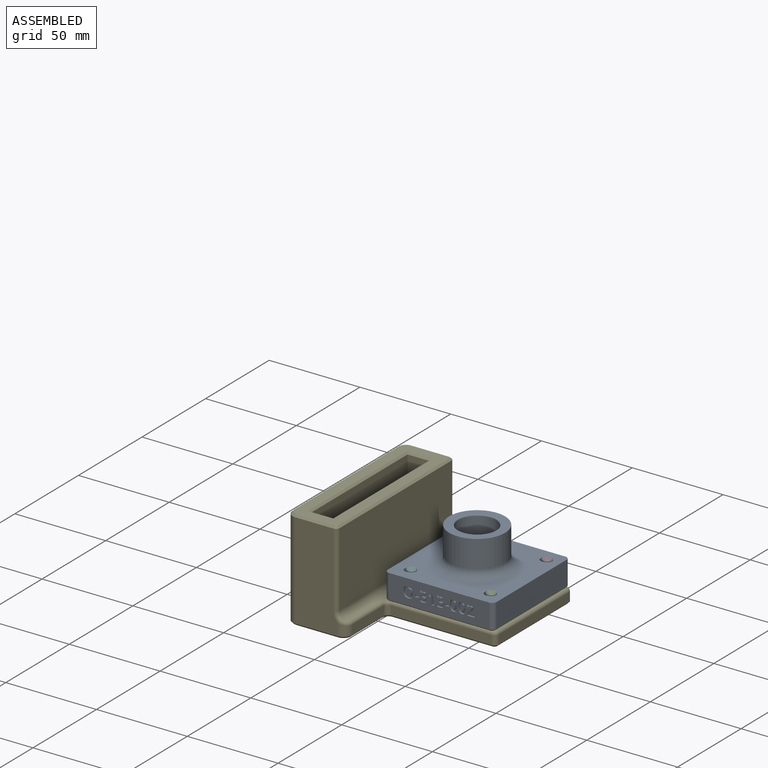
[diagram: assembled view]
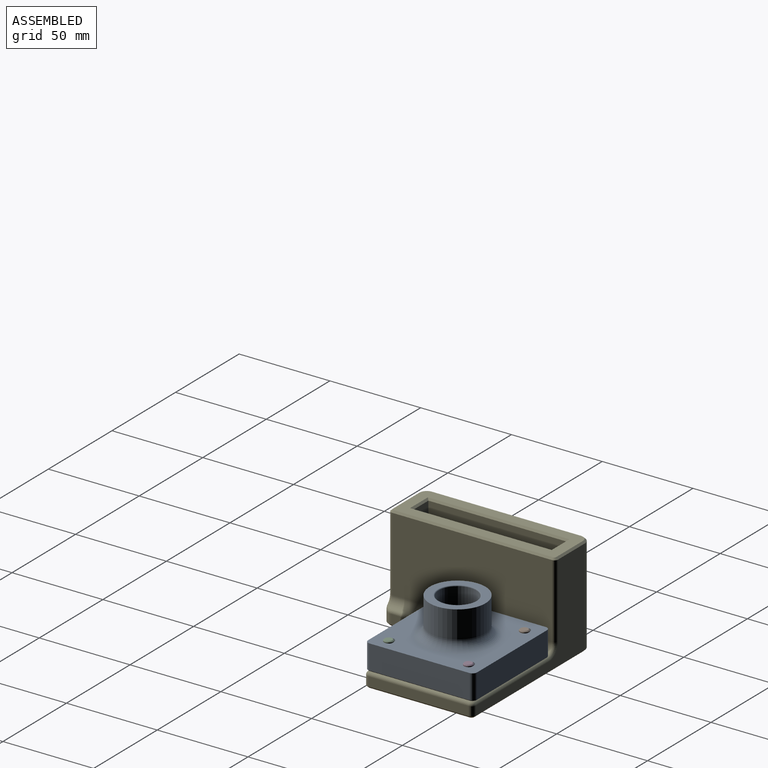
[diagram: assembled view, second angle]
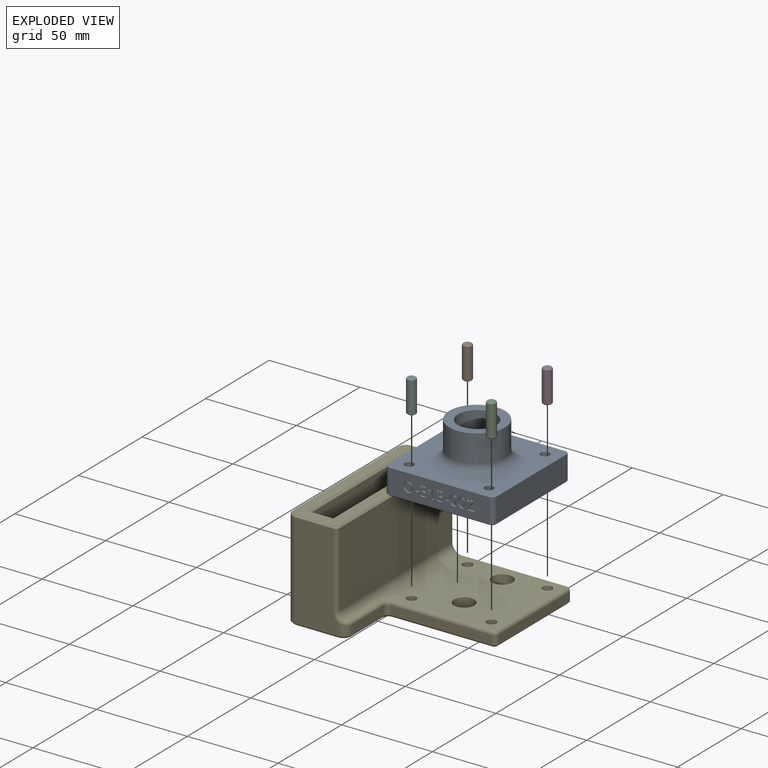
[diagram: exploded view]
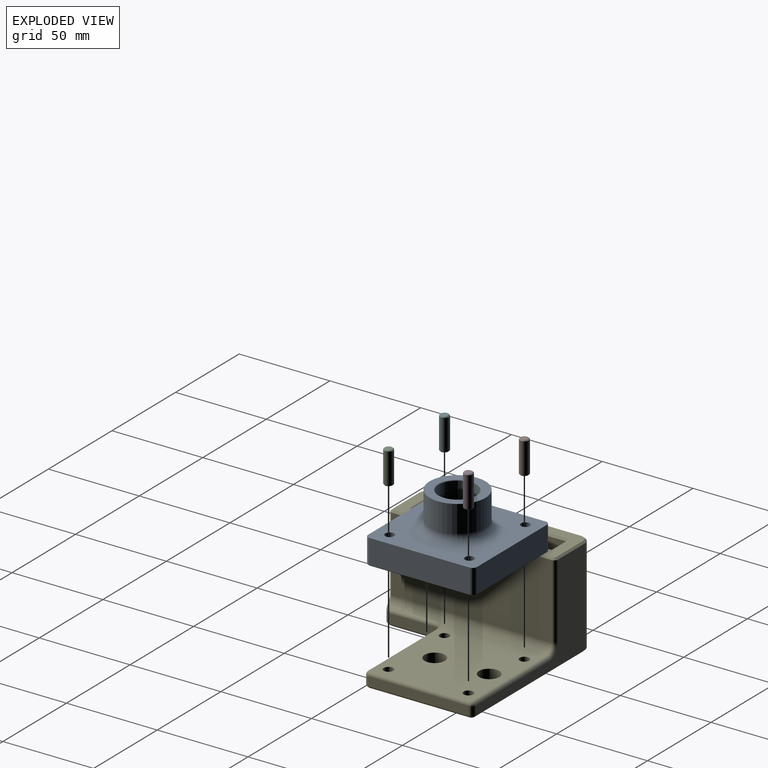
[diagram: exploded view, second angle]
ASSEMBLY  parts=6 mates=5
PART A: 182 faces, bbox 60x60x34 mm
  f0: plane 55x13.5mm, normal (0,-1,0), area 622.7mm2, adj f4,f16,f17,f20,f28,f29,f30,f31
  f1: plane 55x13.5mm, normal (-1,0,0), area 742.5mm2, adj f4,f16,f19,f23
  f2: plane 55x13.5mm, normal (1,0,0), area 742.5mm2, adj f4,f17,f18,f24
  f3: plane 55x13.5mm, normal (0,1,0), area 742.5mm2, adj f4,f18,f19,f27
  f4: plane 60x60mm, normal (0,0,1), area 2208.7mm2, adj f0,f1,f2,f3,f10,f11,f12,f13
  f5: plane 59x59mm, normal (0,0,-1), area 3399mm2, adj f10,f11,f12,f13,f20,f21,f22,f23
  f6: cylinder r=10.4mm len=30.5mm, axis (0,0,-1), area 1993mm2, adj f9,f15
  f7: cylinder r=15.4mm len=30.8mm, axis (0,0,-1), area 1451.4mm2, adj f8,f14
  f8: plane 30.8x30.8mm, normal (0,0,1), area 371.8mm2, adj f7,f15
  f9: plane 20.8x20.8mm, normal (0,0,1), area 339.8mm2, adj f6
  f10: cylinder r=2.5mm len=14mm, axis (0,0,1), area 219.9mm2, adj f4,f5
  f11: cylinder r=2.5mm len=14mm, axis (0,0,1), area 219.9mm2, adj f4,f5
  f12: cylinder r=2.5mm len=14mm, axis (0,0,1), area 219.9mm2, adj f4,f5
  f13: cylinder r=2.5mm len=14mm, axis (0,0,1), area 219.9mm2, adj f4,f5
  f14: torus R=20.4mm, axis (0,0,1), area 849.6mm2, adj f4,f7
  f15: torus R=10.9mm, axis (0,0,1), area 52.2mm2, adj f6,f8
  f16: cylinder r=2.5mm len=13.5mm, axis (0,0,-1), area 53mm2, adj f0,f1,f4,f21
  f17: cylinder r=2.5mm len=13.5mm, axis (0,0,1), area 53mm2, adj f0,f2,f4,f22
  f18: cylinder r=2.5mm len=13.5mm, axis (0,0,-1), area 53mm2, adj f2,f3,f4,f26
  f19: cylinder r=2.5mm len=13.5mm, axis (0,0,1), area 53mm2, adj f1,f3,f4,f25
  f20: plane 55x0.5mm, normal (0,-0.71,-0.71), area 38.9mm2, adj f0,f5,f21,f22
  f21: cone r=2mm half-angle=45deg, axis (0,0,1), area 2.5mm2, adj f5,f16,f20,f23
  f22: cone r=2mm half-angle=45deg, axis (0,0,1), area 2.5mm2, adj f5,f17,f20,f24
  f23: plane 55x0.5mm, normal (-0.71,0,-0.71), area 38.9mm2, adj f1,f5,f21,f25
  f24: plane 55x0.5mm, normal (0.71,0,-0.71), area 38.9mm2, adj f2,f5,f22,f26
  f25: cone r=2mm half-angle=45deg, axis (0,0,1), area 2.5mm2, adj f5,f19,f23,f27
  f26: cone r=2mm half-angle=45deg, axis (0,0,1), area 2.5mm2, adj f5,f18,f24,f27
  f27: plane 55x0.5mm, normal (0,0.71,-0.71), area 38.9mm2, adj f3,f5,f25,f26
  f28: extruded ~1.02x1mm, area 1.2mm2, adj f0,f29,f54,f55
  f29: extruded ~1.43x1mm, area 1.5mm2, adj f0,f28,f30,f55
  f30: extruded ~1.9x1mm, area 2mm2, adj f0,f29,f31,f55
  f31: plane 1x0.85mm, normal (0.83,0,0.56), area 1mm2, adj f0,f30,f32,f55
  f32: extruded ~1x0.66mm, area 0.7mm2, adj f0,f31,f33,f55
  f33: extruded ~1x0.58mm, area 0.6mm2, adj f0,f32,f34,f55
  f34: extruded ~1x0.83mm, area 1.2mm2, adj f0,f33,f35,f55
  f35: extruded ~1x0.61mm, area 0.7mm2, adj f0,f34,f36,f55
  f36: extruded ~1x0.99mm, area 1mm2, adj f0,f35,f37,f55
  f37: plane 1x0.45mm, normal (0,0,-1), area 0.5mm2, adj f0,f36,f38,f55
  f38: plane 1x0.95mm, normal (1,0,0), area 0.9mm2, adj f0,f37,f39,f55
  f39: plane 1x0.44mm, normal (0,0,1), area 0.4mm2, adj f0,f38,f40,f55
  f40: extruded ~1.07x1mm, area 1.1mm2, adj f0,f39,f41,f55
  f41: extruded ~1x0.58mm, area 0.7mm2, adj f0,f40,f42,f55
  f42: extruded ~1x0.67mm, area 0.8mm2, adj f0,f41,f43,f55
  f43: extruded ~1x0.9mm, area 0.9mm2, adj f0,f42,f44,f55
  f44: extruded ~1x0.81mm, area 0.8mm2, adj f0,f43,f45,f55
  f45: extruded ~1x0.75mm, area 0.8mm2, adj f0,f44,f46,f55
  f46: plane 1.05x1mm, normal (1,0,0), area 1mm2, adj f0,f45,f47,f55
  f47: extruded ~1.68x1mm, area 1.7mm2, adj f0,f46,f48,f55
  f48: extruded ~1.74x1mm, area 1.8mm2, adj f0,f47,f49,f55
  f49: extruded ~1.31x1mm, area 1.5mm2, adj f0,f48,f50,f55
  f50: extruded ~1x0.92mm, area 1mm2, adj f0,f49,f51,f55
  f51: extruded ~1.07x1mm, area 1.2mm2, adj f0,f50,f52,f55
  f52: plane 1x0.02mm, normal (-1,0,0), area 0mm2, adj f0,f51,f53,f55
  f53: extruded ~1x0.93mm, area 1.1mm2, adj f0,f52,f54,f55
  f54: extruded ~1x0.93mm, area 1mm2, adj f0,f28,f53,f55
  f55: plane 5.99x4.04mm, normal (0,-1,0), area 12.9mm2, adj f28,f29,f30,f31,f32,f33,f34,f35
  f56: extruded ~2.23x1mm, area 2.4mm2, adj f0,f57,f69,f70
  f57: extruded ~2.06x1mm, area 2.3mm2, adj f0,f56,f58,f70
  f58: extruded ~2.06x1mm, area 2.3mm2, adj f0,f57,f59,f70
  f59: extruded ~2.22x1mm, area 2.4mm2, adj f0,f58,f60,f70
  f60: extruded ~2.23x1mm, area 2.4mm2, adj f0,f59,f61,f70
  f61: extruded ~2.06x1mm, area 2.3mm2, adj f0,f60,f62,f70
  f62: extruded ~2.06x1mm, area 2.3mm2, adj f0,f61,f69,f70
  f63: extruded ~1.47x1mm, area 1.5mm2, adj f64,f68,f70,f71
  f64: extruded ~1.11x1mm, area 1.3mm2, adj f63,f65,f70,f71
  f65: extruded ~1.97x1.47mm, area 2.8mm2, adj f64,f66,f70,f71
  f66: extruded ~1.97x1.48mm, area 2.8mm2, adj f65,f67,f70,f71
  f67: extruded ~1.11x1mm, area 1.3mm2, adj f66,f68,f70,f71
  f68: extruded ~1.47x1mm, area 1.5mm2, adj f63,f67,f70,f71
  f69: extruded ~2.23x1mm, area 2.4mm2, adj f0,f56,f62,f70
  f70: plane 6x5.55mm, normal (0,-1,0), area 17.8mm2, adj f56,f57,f58,f59,f60,f61,f62,f63
  f71: plane 3.94x2.96mm, normal (0,-1,0), area 9.7mm2, adj f63,f64,f65,f66,f67,f68
  f72: extruded ~2.24x1mm, area 2.3mm2, adj f0,f73,f87,f88
  f73: extruded ~1.53x1mm, area 1.8mm2, adj f0,f72,f74,f88
  f74: extruded ~1.54x1mm, area 1.8mm2, adj f0,f73,f75,f88
  f75: extruded ~2.28x1mm, area 2.4mm2, adj f0,f74,f76,f88
  f76: extruded ~2.24x1mm, area 2.3mm2, adj f0,f75,f77,f88
  f77: extruded ~1.52x1mm, area 1.8mm2, adj f0,f76,f78,f88
  f78: extruded ~1.54x1mm, area 1.8mm2, adj f0,f77,f87,f88
  f79: extruded ~1.54x1mm, area 1.6mm2, adj f80,f86,f88,f89
  f80: extruded ~1x0.62mm, area 0.8mm2, adj f79,f81,f88,f89
  f81: extruded ~1x0.62mm, area 0.8mm2, adj f80,f82,f88,f89
  f82: extruded ~1.54x1mm, area 1.6mm2, adj f81,f83,f88,f89
  f83: extruded ~1.53x1mm, area 1.6mm2, adj f82,f84,f88,f89
  f84: extruded ~1x0.62mm, area 0.8mm2, adj f83,f85,f88,f89
  f85: extruded ~1x0.62mm, area 0.8mm2, adj f84,f86,f88,f89
  f86: extruded ~1.54x1mm, area 1.6mm2, adj f79,f85,f88,f89
  f87: extruded ~2.26x1mm, area 2.3mm2, adj f0,f72,f78,f88
  f88: plane 6x4.08mm, normal (0,-1,0), area 14.9mm2, adj f72,f73,f74,f75,f76,f77,f78,f79
  f89: plane 4.01x1.62mm, normal (0,-1,0), area 5.5mm2, adj f79,f80,f81,f82,f83,f84,f85,f86
  f90: extruded ~2.24x1mm, area 2.3mm2, adj f0,f91,f105,f106
  f91: extruded ~1.53x1mm, area 1.8mm2, adj f0,f90,f92,f106
  f92: extruded ~1.54x1mm, area 1.8mm2, adj f0,f91,f93,f106
  f93: extruded ~2.28x1mm, area 2.4mm2, adj f0,f92,f94,f106
  f94: extruded ~2.24x1mm, area 2.3mm2, adj f0,f93,f95,f106
  f95: extruded ~1.52x1mm, area 1.8mm2, adj f0,f94,f96,f106
  f96: extruded ~1.54x1mm, area 1.8mm2, adj f0,f95,f105,f106
  f97: extruded ~1.54x1mm, area 1.6mm2, adj f98,f104,f106,f107
  f98: extruded ~1x0.62mm, area 0.8mm2, adj f97,f99,f106,f107
  f99: extruded ~1x0.62mm, area 0.8mm2, adj f98,f100,f106,f107
  f100: extruded ~1.54x1mm, area 1.6mm2, adj f99,f101,f106,f107
  f101: extruded ~1.53x1mm, area 1.6mm2, adj f100,f102,f106,f107
  f102: extruded ~1x0.62mm, area 0.8mm2, adj f101,f103,f106,f107
  f103: extruded ~1x0.62mm, area 0.8mm2, adj f102,f104,f106,f107
  f104: extruded ~1.54x1mm, area 1.6mm2, adj f97,f103,f106,f107
  f105: extruded ~2.26x1mm, area 2.3mm2, adj f0,f90,f96,f106
  f106: plane 6x4.08mm, normal (0,-1,0), area 14.9mm2, adj f90,f91,f92,f93,f94,f95,f96,f97
  f107: plane 4.01x1.62mm, normal (0,-1,0), area 5.5mm2, adj f97,f98,f99,f100,f101,f102,f103,f104
  f108: plane 2.14x1mm, normal (0,0,1), area 2.1mm2, adj f0,f109,f111,f112
  f109: plane 1x1mm, normal (-1,0,0), area 1mm2, adj f0,f108,f110,f112
  f110: plane 2.14x1mm, normal (0,0,-1), area 2.1mm2, adj f0,f109,f111,f112
  f111: plane 1x1mm, normal (1,0,0), area 1mm2, adj f0,f108,f110,f112
  f112: plane 2.14x1mm, normal (0,-1,0), area 2.1mm2, adj f108,f109,f110,f111
  f113: plane 1.04x1mm, normal (-1,0,0), area 1mm2, adj f0,f114,f136,f137
  f114: plane 2.54x1mm, normal (0,0,-1), area 2.5mm2, adj f0,f113,f115,f137
  f115: plane 1x0.06mm, normal (-1,0,0), area 0.1mm2, adj f0,f114,f116,f137
  f116: plane 1x0.75mm, normal (-0.69,0,0.73), area 1mm2, adj f0,f115,f117,f137
  f117: extruded ~1.06x1.05mm, area 1.5mm2, adj f0,f116,f118,f137
  f118: extruded ~1x0.72mm, area 0.8mm2, adj f0,f117,f119,f137
  f119: extruded ~1x0.76mm, area 0.8mm2, adj f0,f118,f120,f137
  f120: extruded ~1x0.82mm, area 0.9mm2, adj f0,f119,f121,f137
  f121: extruded ~1x0.65mm, area 0.9mm2, adj f0,f120,f122,f137
  f122: extruded ~1x0.97mm, area 1mm2, adj f0,f121,f123,f137
  f123: extruded ~1x0.75mm, area 0.8mm2, adj f0,f122,f124,f137
  f124: extruded ~1x0.62mm, area 0.7mm2, adj f0,f123,f125,f137
  f125: extruded ~1x0.71mm, area 0.9mm2, adj f0,f124,f126,f137
  f126: plane 1x0.79mm, normal (0.76,0,0.65), area 1mm2, adj f0,f125,f127,f137
  f127: extruded ~1x0.67mm, area 0.8mm2, adj f0,f126,f128,f137
  f128: extruded ~1x0.66mm, area 0.7mm2, adj f0,f127,f129,f137
  f129: extruded ~1x0.52mm, area 0.6mm2, adj f0,f128,f130,f137
  f130: extruded ~1x0.52mm, area 0.6mm2, adj f0,f129,f131,f137
  f131: extruded ~1x0.45mm, area 0.5mm2, adj f0,f130,f132,f137
  f132: extruded ~1x0.48mm, area 0.6mm2, adj f0,f131,f133,f137
  f133: extruded ~1x0.92mm, area 1.3mm2, adj f0,f132,f134,f137
  f134: plane 1.48x1.46mm, normal (0.71,0,-0.7), area 2.1mm2, adj f0,f133,f135,f137
  f135: plane 1x0.86mm, normal (1,0,0), area 0.9mm2, adj f0,f134,f136,f137
  f136: plane 4.08x1mm, normal (0,0,1), area 4.1mm2, adj f0,f113,f135,f137
  f137: plane 5.91x4.09mm, normal (0,-1,0), area 12.7mm2, adj f113,f114,f115,f116,f117,f118,f119,f120
  f138: plane 2.14x1mm, normal (0,0,1), area 2.1mm2, adj f0,f139,f141,f142
  f139: plane 1x1mm, normal (-1,0,0), area 1mm2, adj f0,f138,f140,f142
  f140: plane 2.14x1mm, normal (0,0,-1), area 2.1mm2, adj f0,f139,f141,f142
  f141: plane 1x1mm, normal (1,0,0), area 1mm2, adj f0,f138,f140,f142
  f142: plane 2.14x1mm, normal (0,-1,0), area 2.1mm2, adj f138,f139,f140,f141
  f143: extruded ~1.02x1mm, area 1.2mm2, adj f0,f144,f169,f170
  f144: extruded ~1.43x1mm, area 1.5mm2, adj f0,f143,f145,f170
  f145: extruded ~1.9x1mm, area 2mm2, adj f0,f144,f146,f170
  f146: plane 1x0.85mm, normal (0.83,0,0.56), area 1mm2, adj f0,f145,f147,f170
  f147: extruded ~1x0.66mm, area 0.7mm2, adj f0,f146,f148,f170
  f148: extruded ~1x0.58mm, area 0.6mm2, adj f0,f147,f149,f170
  f149: extruded ~1x0.83mm, area 1.2mm2, adj f0,f148,f150,f170
  f150: extruded ~1x0.61mm, area 0.7mm2, adj f0,f149,f151,f170
  f151: extruded ~1x0.99mm, area 1mm2, adj f0,f150,f152,f170
  f152: plane 1x0.45mm, normal (0,0,-1), area 0.5mm2, adj f0,f151,f153,f170
  f153: plane 1x0.95mm, normal (1,0,0), area 0.9mm2, adj f0,f152,f154,f170
  f154: plane 1x0.44mm, normal (0,0,1), area 0.4mm2, adj f0,f153,f155,f170
  f155: extruded ~1.07x1mm, area 1.1mm2, adj f0,f154,f156,f170
  f156: extruded ~1x0.58mm, area 0.7mm2, adj f0,f155,f157,f170
  f157: extruded ~1x0.67mm, area 0.8mm2, adj f0,f156,f158,f170
  f158: extruded ~1x0.9mm, area 0.9mm2, adj f0,f157,f159,f170
  f159: extruded ~1x0.81mm, area 0.8mm2, adj f0,f158,f160,f170
  f160: extruded ~1x0.75mm, area 0.8mm2, adj f0,f159,f161,f170
  f161: plane 1.05x1mm, normal (1,0,0), area 1mm2, adj f0,f160,f162,f170
  f162: extruded ~1.68x1mm, area 1.7mm2, adj f0,f161,f163,f170
  f163: extruded ~1.74x1mm, area 1.8mm2, adj f0,f162,f164,f170
  f164: extruded ~1.31x1mm, area 1.5mm2, adj f0,f163,f165,f170
  f165: extruded ~1x0.92mm, area 1mm2, adj f0,f164,f166,f170
  f166: extruded ~1.07x1mm, area 1.2mm2, adj f0,f165,f167,f170
  f167: plane 1x0.02mm, normal (-1,0,0), area 0mm2, adj f0,f166,f168,f170
  f168: extruded ~1x0.93mm, area 1.1mm2, adj f0,f167,f169,f170
  f169: extruded ~1x0.93mm, area 1mm2, adj f0,f143,f168,f170
  f170: plane 5.99x4.04mm, normal (0,-1,0), area 12.9mm2, adj f143,f144,f145,f146,f147,f148,f149,f150
  f171: plane 5.83x1mm, normal (-1,0,0), area 5.8mm2, adj f0,f172,f180,f181
  f172: plane 1.01x1mm, normal (0,0,-1), area 1mm2, adj f0,f171,f173,f181
  f173: plane 1.88x1.5mm, normal (0.62,0,-0.78), area 2.4mm2, adj f0,f172,f174,f181
  f174: plane 1x0.74mm, normal (0.78,0,0.63), area 1mm2, adj f0,f173,f175,f181
  f175: plane 1x0.67mm, normal (-0.63,0,0.78), area 0.9mm2, adj f0,f174,f176,f181
  f176: extruded ~1x0.43mm, area 0.6mm2, adj f0,f175,f177,f181
  f177: plane 1x0.61mm, normal (1,0,-0.03), area 0.6mm2, adj f0,f176,f178,f181
  f178: plane 1x0.55mm, normal (1,0,-0.02), area 0.6mm2, adj f0,f177,f179,f181
  f179: plane 3.37x1mm, normal (1,0,0), area 3.4mm2, adj f0,f178,f180,f181
  f180: plane 1.23x1mm, normal (0,0,1), area 1.2mm2, adj f0,f171,f179,f181
  f181: plane 5.83x2.89mm, normal (0,-1,0), area 8.8mm2, adj f171,f172,f173,f174,f175,f176,f177,f178
PART B: 5 faces, bbox 5x5x18 mm
  f0: cylinder r=2.5mm len=17mm, axis (0,0,-1), area 267mm2, adj f3,f4
  f1: plane 4x4mm, normal (0,0,1), area 12.6mm2, adj f4
  f2: plane 4x4mm, normal (0,0,-1), area 12.6mm2, adj f3
  f3: cone r=2.5mm half-angle=45deg, axis (0,0,1), area 10mm2, adj f0,f2
  f4: cone r=2mm half-angle=45deg, axis (0,0,-1), area 10mm2, adj f0,f1
PART C: same geometry as B
PART D: same geometry as B
PART E: 79 faces, bbox 93x92.1x55 mm
  f0: plane 76x49mm, normal (-1,0,0), area 2769mm2, adj f1,f19,f21,f23,f24,f25,f26,f27
  f1: plane 13.5x12mm, normal (0,0,1), area 162mm2, adj f0,f19,f20,f24
  f2: plane 85.5x53mm, normal (0,1,0), area 1446mm2, adj f30,f34,f42,f64,f65,f66,f69
  f3: plane 82x53mm, normal (-1,0,0), area 4346mm2, adj f30,f31,f46,f68
  f4: plane 53x23mm, normal (0,-1,0), area 1130.3mm2, adj f29,f31,f50,f54,f55,f72
  f5: plane 24.5x5.29mm, normal (1,0,0), area 129.6mm2, adj f29,f32,f53,f57
  f6: plane 55x5mm, normal (0,-1,0), area 275mm2, adj f32,f33,f49,f60
  f7: plane 55x5mm, normal (1,0,0), area 275mm2, adj f33,f34,f45,f62
  f8: plane 91x90mm, normal (0,0,-1), area 6192.9mm2, adj f36,f39,f42,f43,f44,f45,f46,f47
  f9: cylinder r=2.65mm len=5.3mm, axis (0,0,-1), area 50mm2, adj f13,f16
  f10: cylinder r=2.65mm len=5.3mm, axis (0,0,-1), area 50mm2, adj f13,f15
  f11: cylinder r=2.65mm len=5.3mm, axis (0,0,-1), area 50mm2, adj f13,f14
  f12: cylinder r=2.65mm len=5.3mm, axis (0,0,-1), area 50mm2, adj f13,f17
  f13: plane 58x56.76mm, normal (0,0,1), area 2961.5mm2, adj f9,f10,f11,f12,f35,f38,f41,f59
  f14: plane 5.3x5.3mm, normal (0,0,1), area 22.1mm2, adj f11
  f15: plane 5.3x5.3mm, normal (0,0,1), area 22.1mm2, adj f10
  f16: plane 5.3x5.3mm, normal (0,0,1), area 22.1mm2, adj f9
  f17: plane 5.3x5.3mm, normal (0,0,1), area 22.1mm2, adj f12
  f18: plane 88x41mm, normal (1,0,0), area 3608mm2, adj f35,f54,f66,f73
  f19: plane 49x12mm, normal (0,1,0), area 588mm2, adj f0,f1,f20,f77
  f20: plane 76x49mm, normal (1,0,0), area 2769mm2, adj f1,f19,f21,f23,f24,f25,f26,f27
  f21: plane 49x12mm, normal (0,-1,0), area 588mm2, adj f0,f20,f23,f76
  f22: plane 90x26mm, normal (0,0,1), area 1240.7mm2, adj f67,f68,f69,f70,f71,f72,f73,f74
  f23: plane 13.5x12mm, normal (0,0,1), area 162mm2, adj f0,f20,f21,f25
  f24: plane 15x12mm, normal (0,-1,0), area 180mm2, adj f0,f1,f20,f27
  f25: plane 15x12mm, normal (0,1,0), area 180mm2, adj f0,f20,f23,f28
  f26: plane 39x12mm, normal (0,0,1), area 468mm2, adj f0,f20,f27,f28
  f27: plane 12x5mm, normal (0,-0.71,0.71), area 84.9mm2, adj f0,f20,f24,f26
  f28: plane 12x5mm, normal (0,0.71,0.71), area 84.9mm2, adj f0,f20,f25,f26
  f29: cylinder r=5mm len=7.1mm, axis (0,0,-1), area 45.6mm2, adj f4,f5,f52,f56
  f30: cylinder r=5mm len=53mm, axis (0,0,1), area 416.3mm2, adj f2,f3,f44,f67
  f31: cylinder r=5mm len=53mm, axis (0,0,1), area 416.3mm2, adj f3,f4,f48,f70
  f32: cylinder r=2.5mm len=5.29mm, axis (0,0,-1), area 20mm2, adj f5,f6,f51,f58,f59
  f33: cylinder r=2.5mm len=5mm, axis (0,0,1), area 19.6mm2, adj f6,f7,f47,f61
  f34: cylinder r=2.5mm len=5mm, axis (0,0,-1), area 19.6mm2, adj f2,f7,f43,f63
  f35: cylinder r=5mm len=88mm, axis (0,1,0), area 646mm2, adj f13,f18,f55,f56,f57,f58,f65
  f36: cylinder r=3.3mm len=6.6mm, axis (0,0,1), area 41.5mm2, adj f8,f37
  f37: plane 11.25x11.25mm, normal (0,0,1), area 65.2mm2, adj f36,f38
  f38: cylinder r=5.62mm len=11.25mm, axis (0,0,1), area 212.1mm2, adj f13,f37
  f39: cylinder r=3.3mm len=6.6mm, axis (0,0,1), area 41.5mm2, adj f8,f40
  f40: plane 11.25x11.25mm, normal (0,0,1), area 65.2mm2, adj f39,f41
  f41: cylinder r=5.62mm len=11.25mm, axis (0,0,1), area 212.1mm2, adj f13,f40
  f42: plane 85.5x1mm, normal (0,0.71,-0.71), area 120.9mm2, adj f2,f8,f43,f44
  f43: cone r=1.5mm half-angle=45deg, axis (0,0,1), area 4.4mm2, adj f8,f34,f42,f45
  f44: cone r=4mm half-angle=45deg, axis (0,0,1), area 10mm2, adj f8,f30,f42,f46
  f45: plane 55x1mm, normal (0.71,0,-0.71), area 77.8mm2, adj f7,f8,f43,f47
  f46: plane 82x1mm, normal (-0.71,0,-0.71), area 116mm2, adj f3,f8,f44,f48
  f47: cone r=1.5mm half-angle=45deg, axis (0,0,1), area 4.4mm2, adj f8,f33,f45,f49
  f48: cone r=4mm half-angle=45deg, axis (0,0,1), area 10mm2, adj f8,f31,f46,f50
  f49: plane 55x1mm, normal (0,-0.71,-0.71), area 77.8mm2, adj f6,f8,f47,f51
  f50: plane 23x1mm, normal (0,-0.71,-0.71), area 32.5mm2, adj f4,f8,f48,f52
  f51: cone r=3.5mm half-angle=45deg, axis (0,0,-1), area 6.7mm2, adj f8,f32,f49,f53
  f52: cone r=4mm half-angle=45deg, axis (0,0,1), area 10mm2, adj f8,f29,f50,f53
  f53: plane 24.5x1mm, normal (0.71,0,-0.71), area 34.6mm2, adj f5,f8,f51,f52
  f54: cylinder r=2mm len=41mm, axis (0,0,-1), area 128.8mm2, adj f4,f18,f55,f74
  f55: torus R=7mm, axis (0,-1,0), area 13.9mm2, adj f4,f35,f54,f56
  f56: bspline ~6.15x5.32mm, area 17mm2, adj f29,f35,f55,f57
  f57: cylinder r=2mm len=24.5mm, axis (0,1,0), area 62.8mm2, adj f5,f35,f56,f58
  f58: bspline ~4.9x2.7mm, area 8.5mm2, adj f32,f35,f57,f59
  f59: torus R=4.5mm, axis (0,0,1), area 6mm2, adj f13,f32,f58,f60
  f60: cylinder r=2mm len=55mm, axis (-1,0,0), area 172.8mm2, adj f6,f13,f59,f61
  f61: torus R=0.5mm, axis (0,0,1), area 8.8mm2, adj f13,f33,f60,f62
  f62: cylinder r=2mm len=55mm, axis (0,-1,0), area 172.8mm2, adj f7,f13,f61,f63
  f63: torus R=0.5mm, axis (0,0,1), area 8.8mm2, adj f13,f34,f62,f64
  f64: cylinder r=2mm len=57.5mm, axis (1,0,0), area 180.6mm2, adj f2,f13,f63,f65
  f65: torus R=7mm, axis (0,1,0), area 28.3mm2, adj f2,f35,f64,f66
  f66: cylinder r=2mm len=41mm, axis (0,0,-1), area 128.8mm2, adj f2,f18,f65,f71
  f67: cone r=4mm half-angle=45deg, axis (0,0,-1), area 10mm2, adj f22,f30,f68,f69
  f68: plane 82x1mm, normal (-0.71,0,0.71), area 116mm2, adj f3,f22,f67,f70
  f69: plane 21x1mm, normal (0,0.71,0.71), area 29.7mm2, adj f2,f22,f67,f71
  f70: cone r=4mm half-angle=45deg, axis (0,0,-1), area 10mm2, adj f22,f31,f68,f72
  f71: cone r=1mm half-angle=45deg, axis (0,0,-1), area 3.3mm2, adj f22,f66,f69,f73
  f72: plane 21x1mm, normal (0,-0.71,0.71), area 29.7mm2, adj f4,f22,f70,f74
  f73: plane 88x1mm, normal (0.71,0,0.71), area 124.5mm2, adj f18,f22,f71,f74
  f74: cone r=1mm half-angle=45deg, axis (0,0,-1), area 3.3mm2, adj f22,f54,f72,f73
  f75: plane 78x1mm, normal (0.71,0,0.71), area 108.9mm2, adj f20,f22,f76,f77
  f76: plane 14x1mm, normal (0,-0.71,0.71), area 18.4mm2, adj f21,f22,f75,f78
  f77: plane 14x1mm, normal (0,0.71,0.71), area 18.4mm2, adj f19,f22,f75,f78
  f78: plane 78x1mm, normal (-0.71,0,0.71), area 108.9mm2, adj f0,f22,f76,f77
PART F: same geometry as B
PLACE A t=(-68.22,-17.35,20.27)mm
PLACE B t=(-82.13,4.86,17.27)mm
PLACE C t=(-38.13,-39.14,17.27)mm
PLACE D t=(-38.13,4.86,17.27)mm
PLACE E t=(-7.11,-17.14,12.27)mm
PLACE F t=(-82.13,-39.14,17.27)mm
MATE fastened A.f6 <-> E.f13  axis (0,0,-1) through (-68.22,-17.35,20.27)mm
MATE fastened D.f0 <-> E.f11  axis (0,0,-1) through (-45.11,4.86,17.27)mm
MATE fastened F.f0 <-> E.f12  axis (0,0,-1) through (-89.11,-39.14,17.27)mm
MATE fastened B.f0 <-> E.f9  axis (0,0,-1) through (-89.11,4.86,17.27)mm
MATE fastened C.f0 <-> E.f10  axis (0,0,-1) through (-45.11,-39.14,17.27)mm
